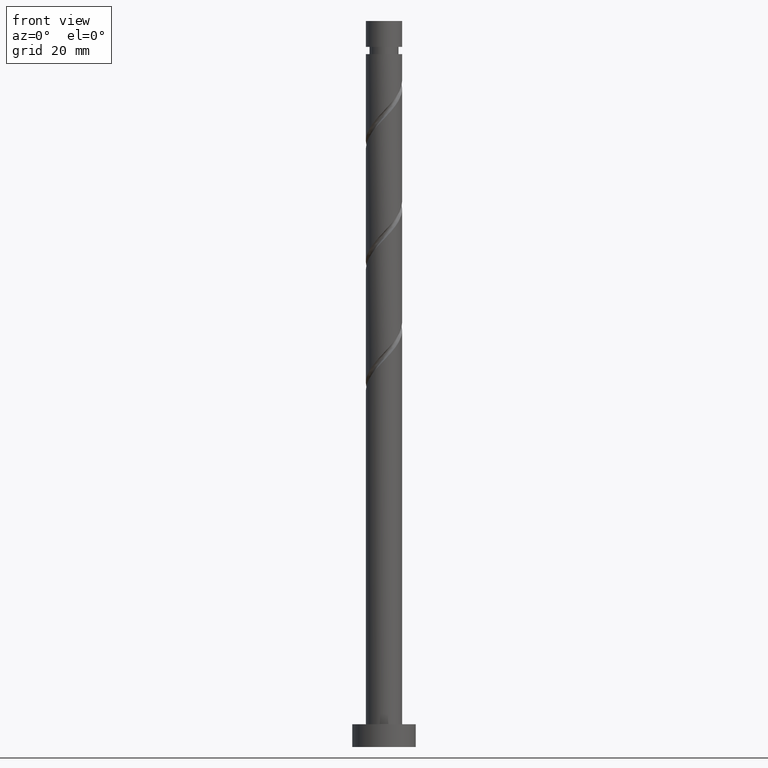
[diagram: clean part render]
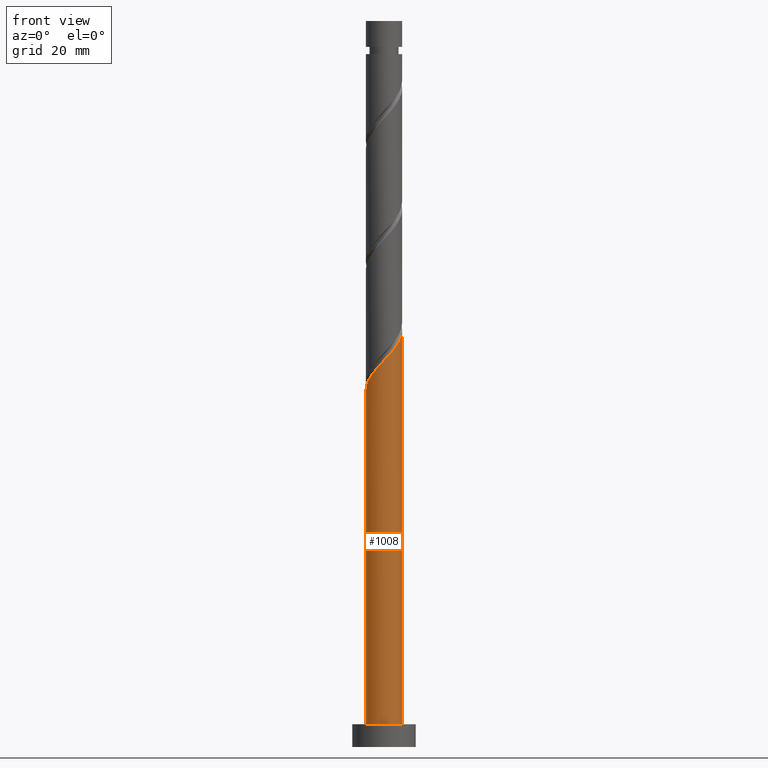
[diagram: same view with one face highlighted and labeled with its STEP entity id]
A machine part, front view. The second image highlights one B-rep face of the part: STEP entity #1008.
In plain terms, the highlighted cylindrical surface (edge-blend (fillet) strip) has radius 4 mm, axis along (-0, -0, -1).
Its self-contained STEP definition (entity closure, byte-faithful):
#39 = CARTESIAN_POINT ( 'NONE',  ( -3.235091246491830219, -2.352484777181776288, 81.19280838895480201 ) ) ;
#49 = CARTESIAN_POINT ( 'NONE',  ( -0.3406448590276067168, -3.985468740313755642, 84.82917202531845646 ) ) ;
#66 = CARTESIAN_POINT ( 'NONE',  ( 4.000000000000000000, 4.898587196589412829E-16, 5.000000000000000000 ) ) ;
#77 = CARTESIAN_POINT ( 'NONE',  ( 0.2323790372250002512, -4.034446077002902697, 85.43523263137902291 ) ) ;
#92 = CARTESIAN_POINT ( 'NONE',  ( 0.7959899496852963496, -3.920000000000007034, 86.04129323743968882 ) ) ;
#154 = CARTESIAN_POINT ( 'NONE',  ( -4.000000000000007105, -2.228566284820962220E-15, 78.52517209147210053 ) ) ;
#213 = CARTESIAN_POINT ( 'NONE',  ( 1.868138386609204726, -3.536956172823916944, 87.25341444956087855 ) ) ;
#221 = CARTESIAN_POINT ( 'NONE',  ( -4.000000000000000000, 0.000000000000000000, 5.000000000000000000 ) ) ;
#223 = LINE ( 'NONE', #1121, #1359 ) ;
#233 = CARTESIAN_POINT ( 'NONE',  ( -4.000000000000007105, -2.228566284820962220E-15, 78.52517209147210053 ) ) ;
#271 = CARTESIAN_POINT ( 'NONE',  ( -1.449682647155076332, -3.728058505782533949, 83.61705081319722410 ) ) ;
#368 = DIRECTION ( 'NONE',  ( -1.000000000000000000, 0.000000000000000000, 0.000000000000000000 ) ) ;
#419 = VECTOR ( 'NONE', #1356, 1000.000000000000000 ) ;
#422 = CARTESIAN_POINT ( 'NONE',  ( -1.985696539029939034, -3.519625607940459755, 83.01099020713660082 ) ) ;
#447 = AXIS2_PLACEMENT_3D ( 'NONE', #996, #1277, #368 ) ;
#454 = ORIENTED_EDGE ( 'NONE', *, *, #1207, .T. ) ;
#462 = DIRECTION ( 'NONE',  ( -0.000000000000000000, -0.000000000000000000, -1.000000000000000000 ) ) ;
#472 = CARTESIAN_POINT ( 'NONE',  ( 0.000000000000000000, 0.000000000000000000, 5.000000000000000000 ) ) ;
#550 = CARTESIAN_POINT ( 'NONE',  ( -2.896854998579488694, -2.817620677520443540, 81.79886899501539688 ) ) ;
#582 = EDGE_CURVE ( 'NONE', #707, #1173, #223, .T. ) ;
#592 = CARTESIAN_POINT ( 'NONE',  ( 2.788941361696815946, -2.867369191613937218, 88.46553566168209670 ) ) ;
#631 = EDGE_LOOP ( 'NONE', ( #1055, #743, #454, #1018 ) ) ;
#666 = CARTESIAN_POINT ( 'NONE',  ( -3.766818871216639941, -1.345762085751509796, 79.98068717683362649 ) ) ;
#676 = EDGE_CURVE ( 'NONE', #931, #1173, #1172, .T. ) ;
#677 = CARTESIAN_POINT ( 'NONE',  ( -4.000000000000007105, -0.1151021060952913122, 78.64727009619031151 ) ) ;
#694 = CARTESIAN_POINT ( 'NONE',  ( 4.000000000000007994, -0.4581157095404886359, 91.37254547183414388 ) ) ;
#707 = VERTEX_POINT ( 'NONE', #1009 ) ;
#734 =( BOUNDED_CURVE ( )  B_SPLINE_CURVE ( 2, ( #154, #677, #1079, #1574, #666, #1166, #39, #550, #1066, #422, #271, #927, #49, #77, #92, #1621, #213, #1111, #592, #1205, #1606, #1474, #818, #694, #1215 ),
 .UNSPECIFIED., .F., .T. ) 
 B_SPLINE_CURVE_WITH_KNOTS ( ( 3, 2, 2, 2, 2, 2, 2, 2, 2, 2, 2, 2, 3 ),
 ( 0.05452521624175134252, 0.05681818181818176772, 0.06818181818181823228, 0.07954545454545458583, 0.09090909090909093937, 0.1022727272727272929, 0.1136363636363636465, 0.1250000000000000000, 0.1363636363636363535, 0.1477272727272727071, 0.1590909090909090606, 0.1704545454545454142, 0.1795252162417513841 ),
 .UNSPECIFIED. ) 
 CURVE ( )  GEOMETRIC_REPRESENTATION_ITEM ( )  RATIONAL_B_SPLINE_CURVE ( ( 0.9061101570135616790, 0.9072237824201438983, 0.9090909090909213841, 0.8998376744372237335, 0.9090909090909213841, 0.8998376744372237335, 0.9090909090909213841, 0.8998376744372237335, 0.9090909090909213841, 0.8998376744372237335, 0.9090909090909213841, 0.8998376744372237335, 0.9090909090909213841, 0.8998376744372237335, 0.9090909090909213841, 0.8998376744372237335, 0.9090909090909213841, 0.8998376744372237335, 0.9090909090909213841, 0.8998376744372237335, 0.9090909090909213841, 0.8998376744372237335, 0.9090909090909213841, 0.9017048011080011083, 0.9061101570135619010 ) ) 
 REPRESENTATION_ITEM ( '' )  );
#736 = VERTEX_POINT ( 'NONE', #233 ) ;
#743 = ORIENTED_EDGE ( 'NONE', *, *, #1160, .F. ) ;
#818 = CARTESIAN_POINT ( 'NONE',  ( 3.896423597087606883, -0.9043689247530181108, 90.88977808592450458 ) ) ;
#837 = LINE ( 'NONE', #1247, #419 ) ;
#851 = DIRECTION ( 'NONE',  ( 0.000000000000000000, 0.000000000000000000, 1.000000000000000000 ) ) ;
#927 = CARTESIAN_POINT ( 'NONE',  ( -0.9136687552802136292, -3.936491403624607255, 84.22311141925784739 ) ) ;
#931 = VERTEX_POINT ( 'NONE', #221 ) ;
#996 = CARTESIAN_POINT ( 'NONE',  ( 0.000000000000000000, 0.000000000000000000, 160.0000000000000000 ) ) ;
#1008 = ADVANCED_FACE ( 'NONE', ( #1526 ), #1269, .T. ) ;
#1009 = CARTESIAN_POINT ( 'NONE',  ( 4.000000000000007105, 2.049084436379005528E-15, 91.85850542480544334 ) ) ;
#1018 = ORIENTED_EDGE ( 'NONE', *, *, #676, .T. ) ;
#1055 = ORIENTED_EDGE ( 'NONE', *, *, #582, .F. ) ;
#1066 = CARTESIAN_POINT ( 'NONE',  ( -2.441275768804713309, -3.168623142730452091, 82.40492960107602016 ) ) ;
#1079 = CARTESIAN_POINT ( 'NONE',  ( -3.993381233129886798, -0.2300137536889529932, 78.76856596471237992 ) ) ;
#1111 = CARTESIAN_POINT ( 'NONE',  ( 2.376675911072818614, -3.268358422650722517, 87.85947505562150184 ) ) ;
#1121 = CARTESIAN_POINT ( 'NONE',  ( 4.000000000000000000, 4.898587196589412829E-16, 160.0000000000000000 ) ) ;
#1160 = EDGE_CURVE ( 'NONE', #736, #707, #734, .T. ) ;
#1166 = CARTESIAN_POINT ( 'NONE',  ( -3.573327494404170857, -1.887348876843109924, 80.58674778289420715 ) ) ;
#1172 = CIRCLE ( 'NONE', #1384, 4.000000000000000000 ) ;
#1173 = VERTEX_POINT ( 'NONE', #66 ) ;
#1205 = CARTESIAN_POINT ( 'NONE',  ( 3.201206812320813277, -2.466379960577150143, 89.07159626774269157 ) ) ;
#1207 = EDGE_CURVE ( 'NONE', #736, #931, #837, .T. ) ;
#1215 = CARTESIAN_POINT ( 'NONE',  ( 4.000000000000007105, 2.049084436379005528E-15, 91.85850542480544334 ) ) ;
#1247 = CARTESIAN_POINT ( 'NONE',  ( -4.000000000000000000, 0.000000000000000000, 160.0000000000000000 ) ) ;
#1269 = CYLINDRICAL_SURFACE ( 'NONE', #447, 4.000000000000000000 ) ;
#1277 = DIRECTION ( 'NONE',  ( -0.000000000000000000, -0.000000000000000000, -1.000000000000000000 ) ) ;
#1356 = DIRECTION ( 'NONE',  ( -0.000000000000000000, -0.000000000000000000, -1.000000000000000000 ) ) ;
#1359 = VECTOR ( 'NONE', #462, 1000.000000000000000 ) ;
#1373 = DIRECTION ( 'NONE',  ( 1.000000000000000000, 0.000000000000000000, 0.000000000000000000 ) ) ;
#1384 = AXIS2_PLACEMENT_3D ( 'NONE', #472, #851, #1373 ) ;
#1474 = CARTESIAN_POINT ( 'NONE',  ( 3.766394975944549639, -1.464590062224030875, 90.28371747986390972 ) ) ;
#1526 = FACE_OUTER_BOUND ( 'NONE', #631, .T. ) ;
#1574 = CARTESIAN_POINT ( 'NONE',  ( -3.960310248029109470, -0.8041752946599105556, 79.37462657077297479 ) ) ;
#1606 = CARTESIAN_POINT ( 'NONE',  ( 3.483800894132680792, -1.965485011400592397, 89.67765687380331485 ) ) ;
#1621 = CARTESIAN_POINT ( 'NONE',  ( 1.359600862145592615, -3.805553922997110483, 86.64735384350026948 ) ) ;